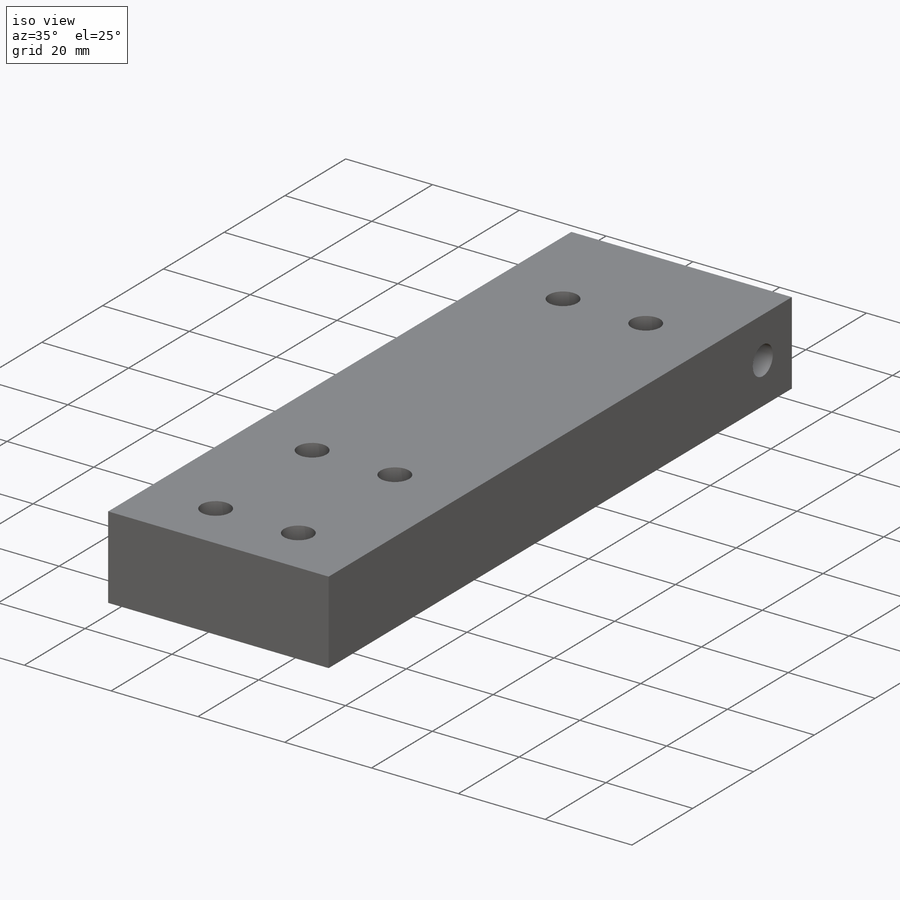
[diagram: iso view]
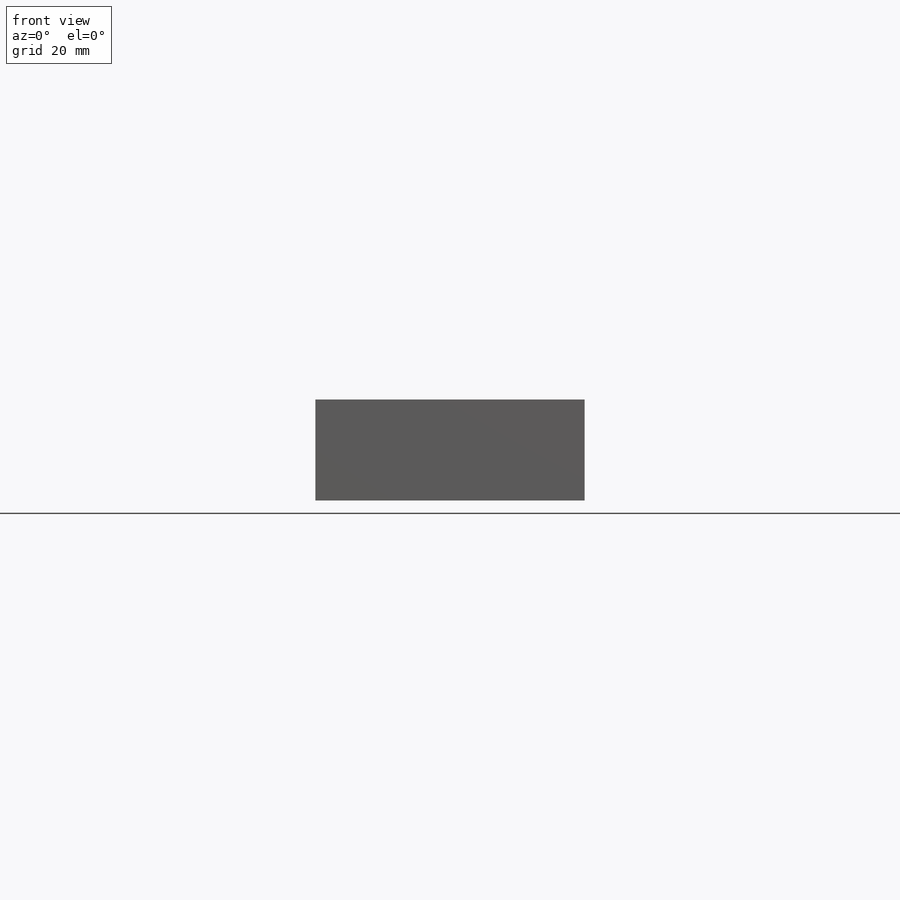
[diagram: front view]
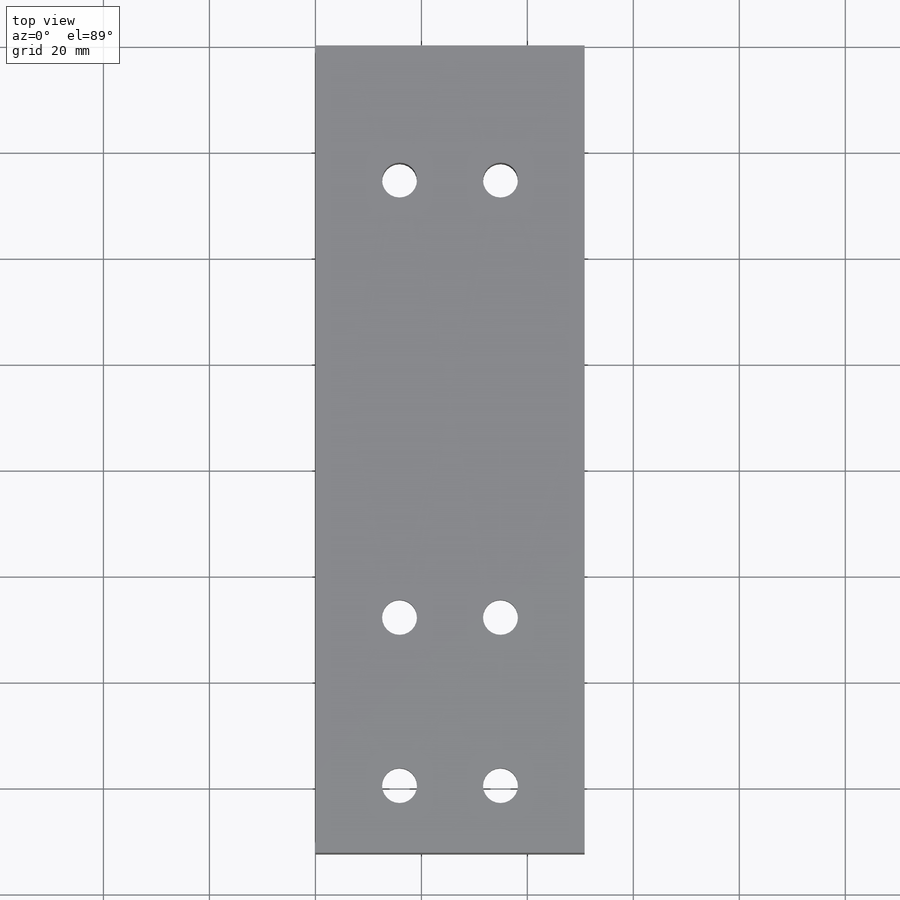
[diagram: top view]
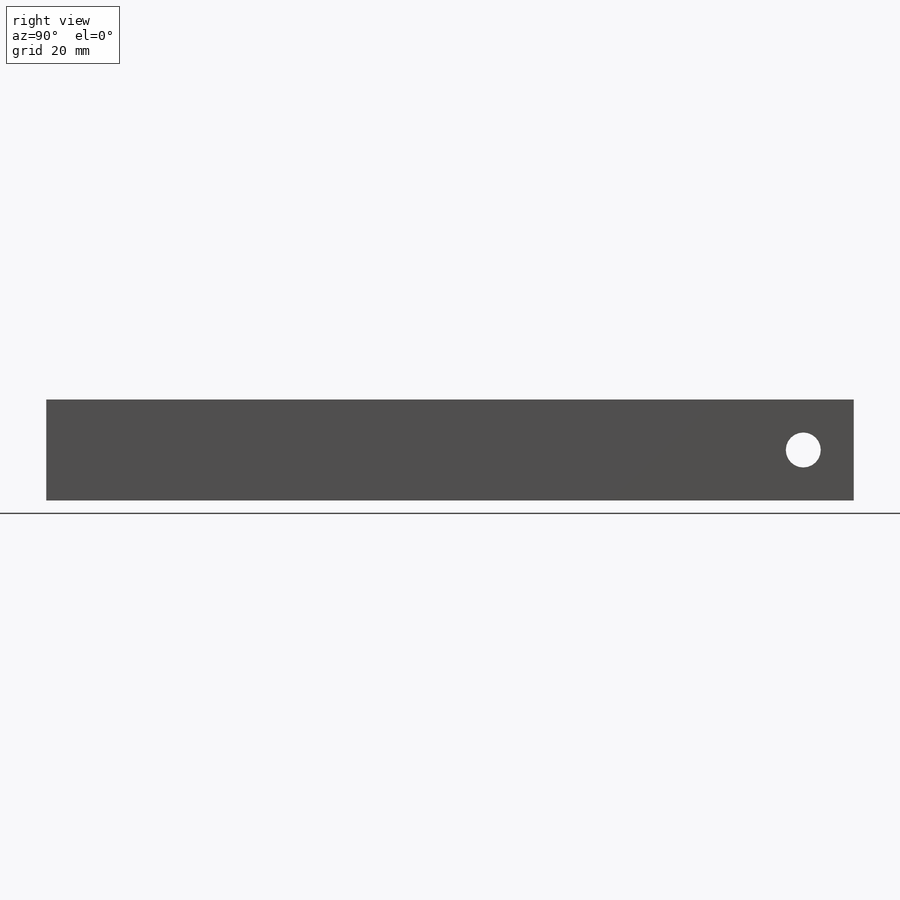
[diagram: right view]
SOLIDWORKS PART (.sldprt)
format: sldprt  version: not decoded by parser v0  size: 207,872 bytes
history: native  units: mm
features: sketch x7, hole x3, material x1, extrude x1 (+11 scaffold rows collapsed)
feature tree (23):
  scaffold x11  (default folders/planes/origin — collapsed)
  material  "Material <not specified>"
  sketch  "Sketch1"  dims[D1=19.05mm D2=50.8mm]
  extrude  "Boss-Extrude1"  Depth=152.4mm
  hole  "CBORE for M6 SHCS1"  Diameter=6.6mm Depth=19.05mm
  sketch  "Sketch3"
  sketch  "Sketch2"  dims[hole-wizard template sketch: 42 standard entries collapsed; hole parameters kept: c12.Thru Hole Depth=19.05mm c12.C'Bore Dia.=11.0mm c12.C'Bore Depth=12.35mm]
  hole  "M6 Clearance Hole1"  Diameter=6.6mm Depth=50.8mm
  sketch  "Sketch6"  dims[c1.D1=12.7mm c1.D2=12.7mm c2.D1=9.525mm]
  sketch  "Sketch5"  dims[hole-wizard template sketch: 60 standard entries collapsed; hole parameters kept: c18.Thru Hole Depth=50.8mm]
  hole  "M6 Clearance Hole2"  Diameter=6.6mm Depth=19.05mm
  sketch  "Sketch8"
  sketch  "Sketch7"  dims[hole-wizard template sketch: 60 standard entries collapsed; hole parameters kept: c18.Thru Hole Depth=19.05mm]
decode coverage: 9 of 11 modeling features carry decoded parameters
note: ~ marks probable driven/reference dimensions
note: suppression state not decoded; provenance and decode notes live in map.json
